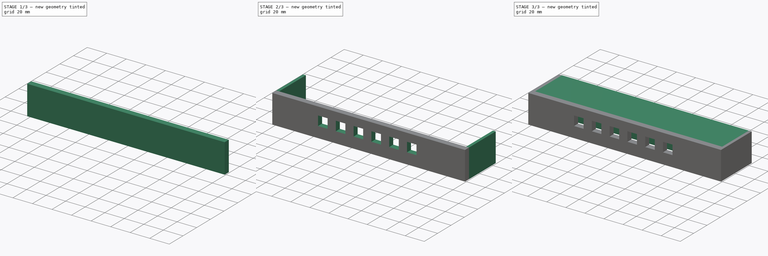
[diagram: build sequence overview — one tinted view per stage of 3, left to right]
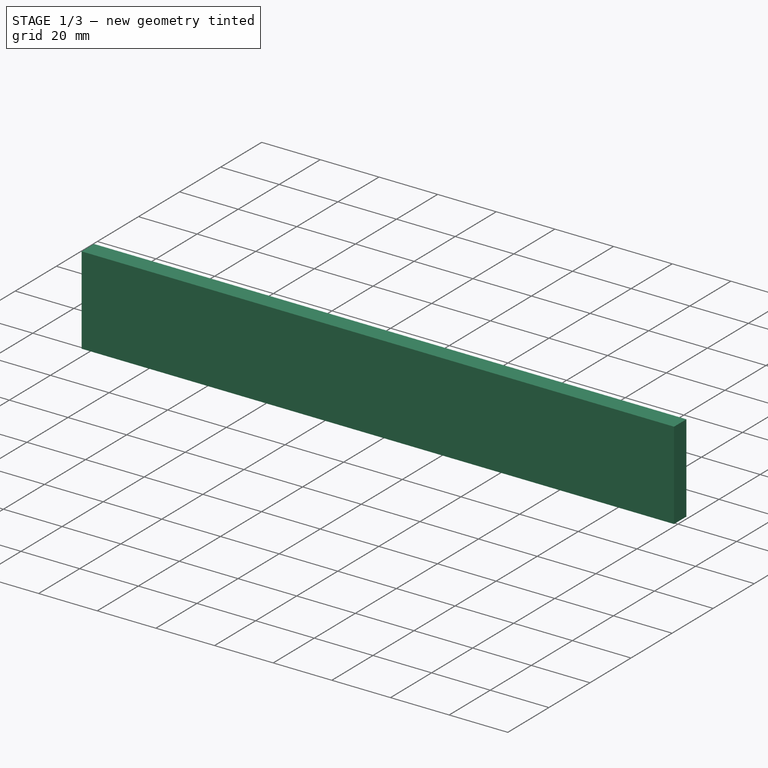
[diagram: stage 1 of 3 — iso view after this stage's code; geometry added in this stage tinted green]
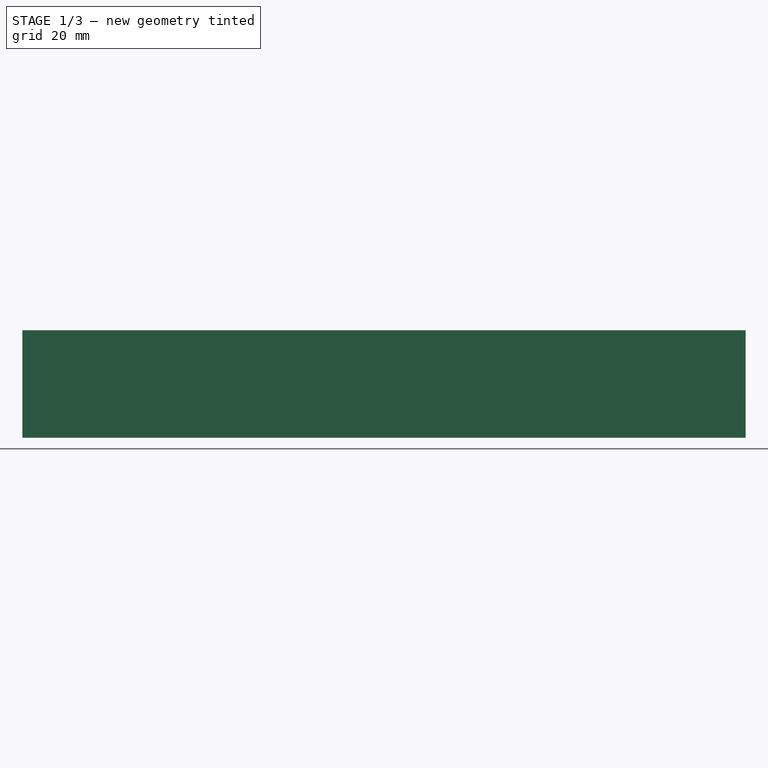
[diagram: stage 1 of 3 — front view after this stage's code; geometry added in this stage tinted green]
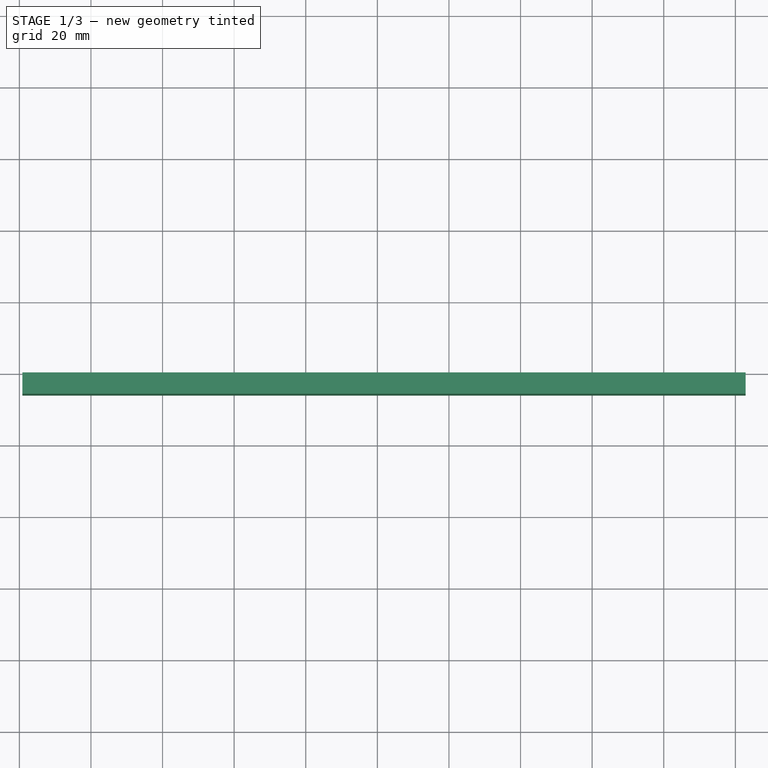
[diagram: stage 1 of 3 — top view after this stage's code; geometry added in this stage tinted green]
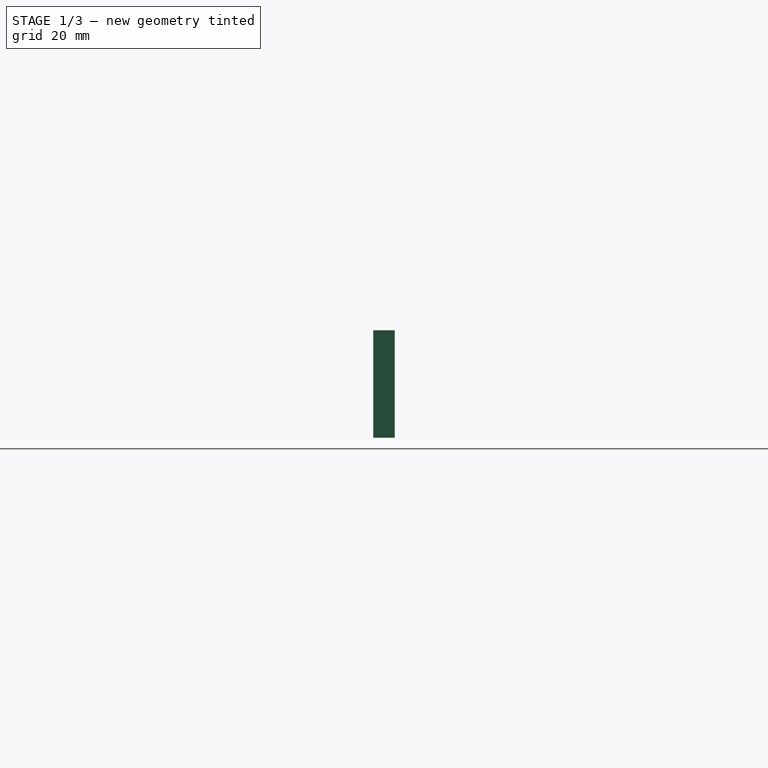
[diagram: stage 1 of 3 — right view after this stage's code; geometry added in this stage tinted green]
FCSTD DOCUMENT  (FreeCAD 0.21R33771 (Git))
Label: iteration2-testsupport
License: All rights reserved
LicenseURL: http://en.wikipedia.org/wiki/All_rights_reserved
objects: Sketcher::SketchObject×6, PartDesign::Pad×4, PartDesign::Pocket×2, App::MeasureDistance×1, PartDesign::LinearPattern×1, PartDesign::Body×1
note: 20 computed .brp shape members not serialized (recipe doc carries the construction recipe); baked Part::Feature solids carry a one-line shape summary decoded from their .brp

FEATURE [Sketcher::SketchObject] Sketch  label="bezel-front"
  FullyConstrained = true
  MapMode = 5
  Placement = pos=(0,0,0) rot=(1,0,0;1.5708rad)
  Support = -> [XZ_Plane]
  sketch-geometry (7):
    g0: LineSegment StartX=-69.1431 StartY=50.8022 StartZ=0 EndX=72.8569 EndY=50.8022 EndZ=0
    g1: LineSegment StartX=-99.1434 StartY=80.8022 StartZ=0 EndX=102.86 EndY=80.8022 EndZ=0
    g2: LineSegment StartX=1.95892 StartY=50.8022 StartZ=0 EndX=1.95892 EndY=80.8022 EndZ=0
    g3: LineSegment StartX=-69.1431 StartY=50.8022 StartZ=0 EndX=-99.1434 EndY=50.8022 EndZ=0
    g4: LineSegment StartX=72.8569 StartY=50.8022 StartZ=0 EndX=102.86 EndY=50.8022 EndZ=0
    g5: LineSegment StartX=102.86 StartY=80.8022 StartZ=0 EndX=102.86 EndY=50.8022 EndZ=0
    g6: LineSegment StartX=-99.1434 StartY=80.8022 StartZ=0 EndX=-99.1434 EndY=50.8022 EndZ=0
  constraints (22):
    c: Horizontal(g0)
    c: DistanceX(g0,g0) = 142
    c: Distance(g-1,g0) = 85.8
    c: Distance(g-1,g0) = 88.82
    c: Horizontal(g1)
    c: PointOnObject(g2,g0)
    c: PointOnObject(g2,g1)
    c: Vertical(g2)
    c: DistanceY(g2,g2) = 30
    c: Distance(g-1,g2) = 50.84
    c: Coincident(g3,g0)
    c: Horizontal(g3)
    c: Coincident(g4,g0)
    c: Horizontal(g4)
    c: Coincident(g5,g1)
    c: Coincident(g5,g4)
    c: Vertical(g5)
    c: Coincident(g6,g1)
    c: Coincident(g6,g3)
    c: Vertical(g6)
    c: DistanceX(g-2,g1) = 102.86
    c: Distance(g-1,g1) = 127.9
FEATURE [Sketcher::SketchObject] Sketch001  label="lcdinset"
  FullyConstrained = true
  MapMode = 5
  Placement = pos=(0,0,0) rot=(-1,0,0;1.5708rad)
  sketch-geometry (4):
    g0: LineSegment StartX=78 StartY=-59.5 StartZ=0 EndX=-78 EndY=-59.5 EndZ=0
    g1: LineSegment StartX=78 StartY=-59.5 StartZ=0 EndX=78 EndY=-50.69 EndZ=0
    g2: LineSegment StartX=-78 StartY=-59.5 StartZ=0 EndX=-78 EndY=-50.69 EndZ=0
    g3: LineSegment StartX=78 StartY=-50.69 StartZ=0 EndX=-78 EndY=-50.69 EndZ=0
  constraints (12):
    c: Horizontal(g0)
    c: DistanceX(g0,g0) = 156
    c: Coincident(g1,g0)
    c: Vertical(g1)
    c: Coincident(g2,g0)
    c: Vertical(g2)
    c: Coincident(g3,g1)
    c: Coincident(g3,g2)
    c: Horizontal(g3)
    c: DistanceX(g-2,g1) = 78
    c: DistanceY(g-1,g0) = -59.5
    c: DistanceY(g-1,g2) = -50.69
FEATURE [Sketcher::SketchObject] Sketch015
  FullyConstrained = true
  MapMode = 5
  Placement = pos=(0,-6,2.7e-15) rot=(1,0,0;1.5708rad)
  sketch-geometry (31):
    g0: LineSegment StartX=-68.77 StartY=54.8 StartZ=0 EndX=-51.15 EndY=54.8 EndZ=0
    g1: LineSegment StartX=-51.15 StartY=54.8 StartZ=0 EndX=-51.15 EndY=62.3 EndZ=0
    g2: LineSegment StartX=-51.15 StartY=62.3 StartZ=0 EndX=-41.15 EndY=62.3 EndZ=0
    g3: LineSegment StartX=-41.15 StartY=62.3 StartZ=0 EndX=-41.15 EndY=72.3 EndZ=0
    g4: LineSegment StartX=-41.15 StartY=72.3 StartZ=0 EndX=-51.15 EndY=72.3 EndZ=0
    g5: LineSegment StartX=-51.15 StartY=72.3 StartZ=0 EndX=-51.15 EndY=62.3 EndZ=0
    g6: LineSegment StartX=-41.15 StartY=62.3 StartZ=0 EndX=-32.51 EndY=62.3 EndZ=0
    g7: LineSegment StartX=-32.51 StartY=62.3 StartZ=0 EndX=-22.51 EndY=62.3 EndZ=0
    g8: LineSegment StartX=-22.51 StartY=62.3 StartZ=0 EndX=-22.51 EndY=72.3 EndZ=0
    g9: LineSegment StartX=-22.51 StartY=72.3 StartZ=0 EndX=-32.51 EndY=72.3 EndZ=0
    g10: LineSegment StartX=-32.51 StartY=72.3 StartZ=0 EndX=-32.51 EndY=62.3 EndZ=0
    g11: LineSegment StartX=-22.51 StartY=62.3 StartZ=0 EndX=-13.87 EndY=62.3 EndZ=0
    g12: LineSegment StartX=-13.87 StartY=62.3 StartZ=0 EndX=-3.87 EndY=62.3 EndZ=0
    g13: LineSegment StartX=-3.87 StartY=62.3 StartZ=0 EndX=-3.87 EndY=72.3 EndZ=0
    g14: LineSegment StartX=-3.87 StartY=72.3 StartZ=0 EndX=-13.87 EndY=72.3 EndZ=0
    g15: LineSegment StartX=-13.87 StartY=72.3 StartZ=0 EndX=-13.87 EndY=62.3 EndZ=0
    g16: LineSegment StartX=-3.87 StartY=62.3 StartZ=0 EndX=4.77 EndY=62.3 EndZ=0
    g17: LineSegment StartX=4.77 StartY=62.3 StartZ=0 EndX=14.77 EndY=62.3 EndZ=0
    g18: LineSegment StartX=14.77 StartY=62.3 StartZ=0 EndX=14.77 EndY=72.3 EndZ=0
    g19: LineSegment StartX=14.77 StartY=72.3 StartZ=0 EndX=4.77 EndY=72.3 EndZ=0
    g20: LineSegment StartX=4.77 StartY=72.3 StartZ=0 EndX=4.77 EndY=62.3 EndZ=0
    g21: LineSegment StartX=14.77 StartY=62.3 StartZ=0 EndX=23.41 EndY=62.3 EndZ=0
    g22: LineSegment StartX=23.41 StartY=62.3 StartZ=0 EndX=33.41 EndY=62.3 EndZ=0
    g23: LineSegment StartX=33.41 StartY=62.3 StartZ=0 EndX=33.41 EndY=72.3 EndZ=0
    g24: LineSegment StartX=33.41 StartY=72.3 StartZ=0 EndX=23.41 EndY=72.3 EndZ=0
    g25: LineSegment StartX=23.41 StartY=72.3 StartZ=0 EndX=23.41 EndY=62.3 EndZ=0
    g26: LineSegment StartX=33.41 StartY=62.3 StartZ=0 EndX=42.05 EndY=62.3 EndZ=0
    g27: LineSegment StartX=42.05 StartY=62.3 StartZ=0 EndX=52.05 EndY=62.3 EndZ=0
    g28: LineSegment StartX=52.05 StartY=62.3 StartZ=0 EndX=52.05 EndY=72.3 EndZ=0
    g29: LineSegment StartX=52.05 StartY=72.3 StartZ=0 EndX=42.05 EndY=72.3 EndZ=0
    g30: LineSegment StartX=42.05 StartY=72.3 StartZ=0 EndX=42.05 EndY=62.3 EndZ=0
  constraints (88):
    c: Horizontal(g0)
    c: DistanceX(g0,g0) = 17.62
    c: DistanceX(g-2,g0) = -51.15
    c: DistanceY(g-1,g0) = 54.8
    c: Coincident(g1,g0)
    c: Vertical(g1)
    c: DistanceY(g1,g1) = 7.5
    c: Coincident(g2,g3)
    c: Coincident(g3,g4)
    c: Coincident(g4,g5)
    c: Coincident(g5,g2)
    c: Horizontal(g2)
    c: Horizontal(g4)
    c: Vertical(g3)
    c: Vertical(g5)
    c: Coincident(g2,g1)
    c: DistanceX(g2,g2) = 10
    c: DistanceY(g3,g3) = 10
    c: Coincident(g6,g2)
    c: Horizontal(g6)
    c: DistanceX(g6,g6) = 8.64
    c: Coincident(g7,g8)
    c: Coincident(g8,g9)
    c: Coincident(g9,g10)
    c: Coincident(g10,g7)
    c: Horizontal(g7)
    c: Horizontal(g9)
    c: Vertical(g8)
    c: Vertical(g10)
    c: Coincident(g7,g6)
    c: DistanceX(g7,g7) = 10
    c: DistanceY(g8,g8) = 10
    c: Coincident(g11,g7)
    c: Horizontal(g11)
    c: DistanceX(g11,g11) = 8.64
    c: Coincident(g12,g13)
    c: Coincident(g13,g14)
    c: Coincident(g14,g15)
    c: Coincident(g15,g12)
    c: Horizontal(g12)
    c: Horizontal(g14)
    c: Vertical(g13)
    c: Vertical(g15)
    c: Coincident(g12,g11)
    c: DistanceX(g12,g12) = 10
    c: DistanceY(g13,g13) = 10
    c: Coincident(g16,g12)
    c: Horizontal(g16)
    c: DistanceX(g16,g16) = 8.64
    c: Coincident(g17,g18)
    c: Coincident(g18,g19)
    c: Coincident(g19,g20)
    c: Coincident(g20,g17)
    c: Horizontal(g17)
    c: Horizontal(g19)
    c: Vertical(g18)
    c: Vertical(g20)
    c: Coincident(g17,g16)
    c: DistanceX(g17,g17) = 10
    c: DistanceY(g18,g18) = 10
    c: Coincident(g21,g17)
    c: Horizontal(g21)
    c: DistanceX(g21,g21) = 8.64
    c: Coincident(g22,g23)
    c: Coincident(g23,g24)
    c: Coincident(g24,g25)
    c: Coincident(g25,g22)
    c: Horizontal(g22)
    c: Horizontal(g24)
    c: Vertical(g23)
    c: Vertical(g25)
    c: Coincident(g22,g21)
    c: DistanceX(g22,g22) = 10
    c: Coincident(g26,g22)
    c: Horizontal(g26)
    c: DistanceX(g26,g26) = 8.64
    c: Coincident(g27,g28)
    c: Coincident(g28,g29)
    c: Coincident(g29,g30)
    c: Coincident(g30,g27)
    c: Horizontal(g27)
    c: Horizontal(g29)
    c: Vertical(g28)
    c: Vertical(g30)
    c: Coincident(g27,g26)
    c: DistanceX(g27,g27) = 10
    c: DistanceY(g28,g28) = 10
    c: DistanceY(g23,g23) = 10
FEATURE [App::MeasureDistance] Distance  label="Distance: 4.23 mm"
  Distance = 4.23431
  P1 = (-22.5598,-5.99999,-53.1978)
  P2 = (-22.4715,-3.00654,-50.2043)
FEATURE [PartDesign::Pad] Pad
  Direction = (0,-1,-2e-16)
  Length = 6
  Length2 = 10
  Placement = pos=(0,0,0) rot=(1,0,0;1.5708rad)
  Profile = -> Sketch
  ReferenceAxis = -> Sketch [N_Axis]
  Type = 0
FEATURE [PartDesign::Pocket] Pocket
  BaseFeature = -> Pad
  Direction = (0,-1,4e-16)
  Length = 4
  Length2 = 5
  Placement = pos=(0,0,0) rot=(1,0,0;1.5708rad)
  Profile = -> Sketch001
  ReferenceAxis = -> Sketch001 [N_Axis]
  Type = 0
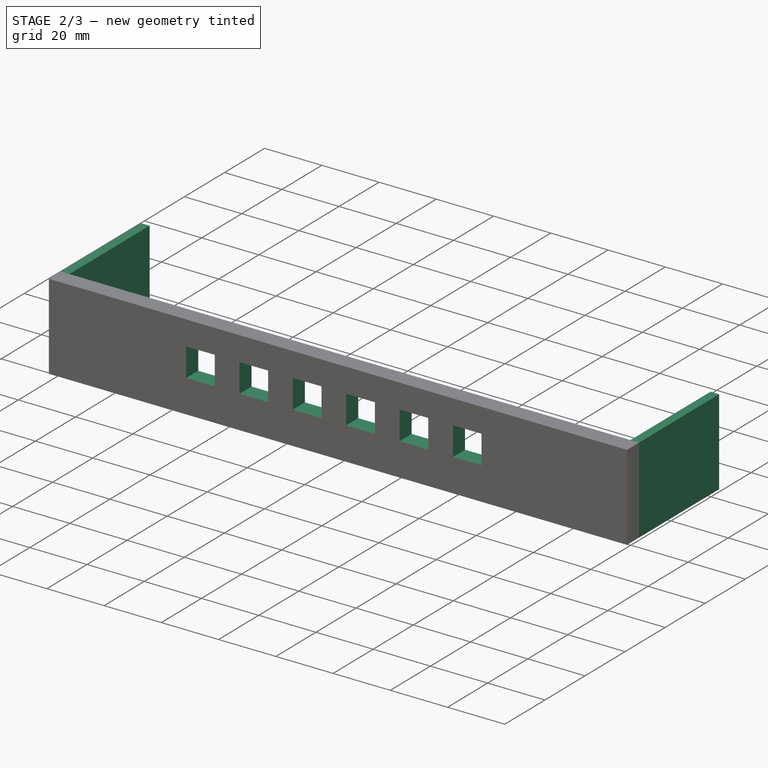
[diagram: stage 2 of 3 — iso view after this stage's code; geometry added in this stage tinted green]
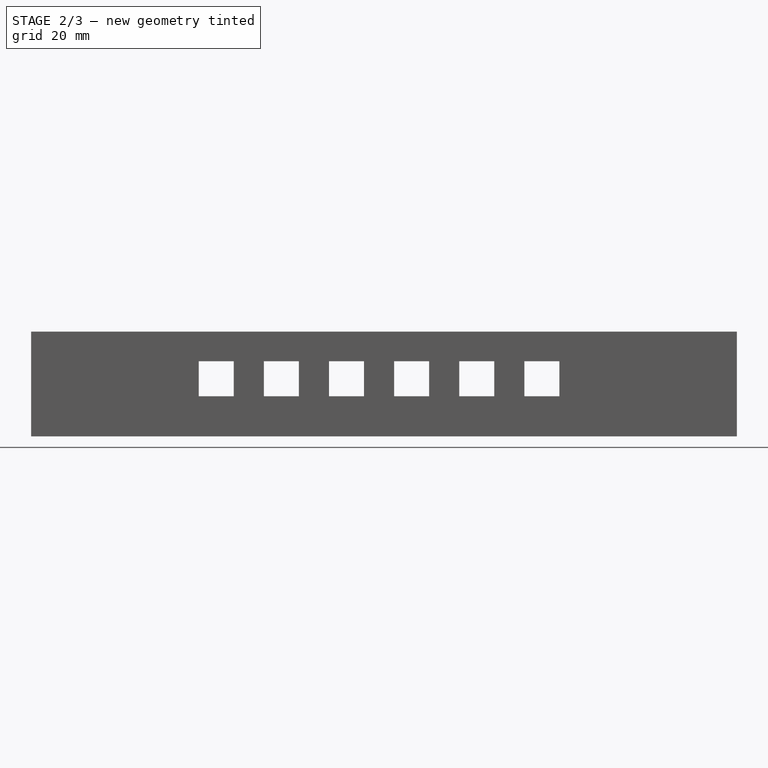
[diagram: stage 2 of 3 — front view after this stage's code; geometry added in this stage tinted green]
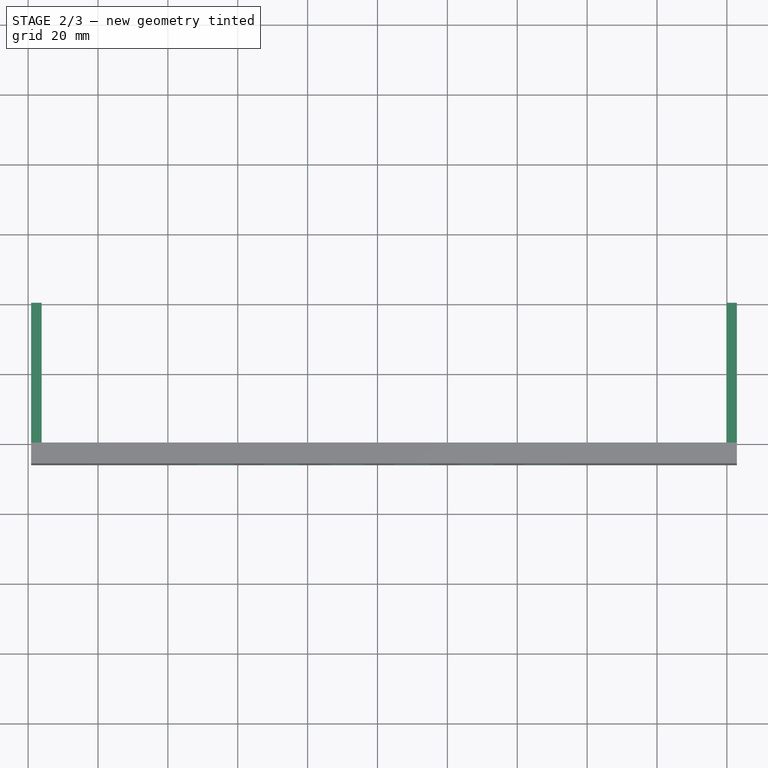
[diagram: stage 2 of 3 — top view after this stage's code; geometry added in this stage tinted green]
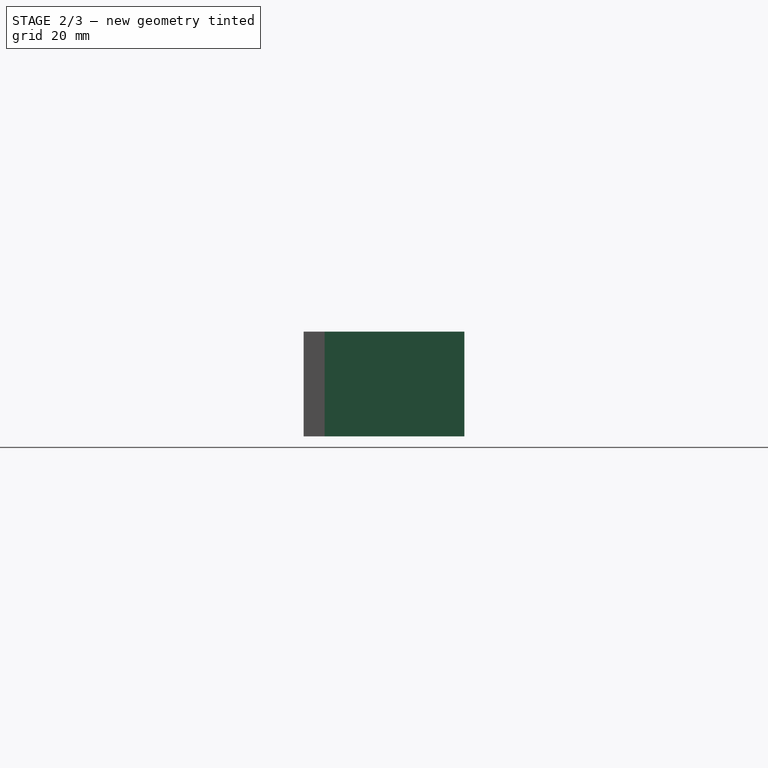
[diagram: stage 2 of 3 — right view after this stage's code; geometry added in this stage tinted green]
FEATURE [PartDesign::Pocket] Pocket001
  BaseFeature = -> Pocket
  Direction = (0,1,-4e-16)
  Length = 5
  Length2 = 5
  Placement = pos=(0,0,0) rot=(1,0,0;1.5708rad)
  Profile = -> Sketch015
  ReferenceAxis = -> Sketch015 [N_Axis]
  Type = 1
FEATURE [Sketcher::SketchObject] Sketch016
  FullyConstrained = false
  MapMode = 5
  Placement = pos=(0,0,0) rot=(-1,0,0;1.5708rad)
  Support = -> [Pocket001]
  sketch-geometry (4):
    g0: LineSegment StartX=102.86 StartY=-50.8041 StartZ=0 EndX=99.86 EndY=-50.8041 EndZ=0
    g1: LineSegment StartX=99.86 StartY=-50.8041 StartZ=0 EndX=99.86 EndY=-80.8041 EndZ=0
    g2: LineSegment StartX=99.86 StartY=-80.8041 StartZ=0 EndX=102.86 EndY=-80.8041 EndZ=0
    g3: LineSegment StartX=102.86 StartY=-80.8041 StartZ=0 EndX=102.86 EndY=-50.8041 EndZ=0
  constraints (10):
    c: Coincident(g0,g1)
    c: Coincident(g1,g2)
    c: Coincident(g2,g3)
    c: Coincident(g3,g0)
    c: Horizontal(g0)
    c: Horizontal(g2)
    c: Vertical(g1)
    c: Vertical(g3)
    c: DistanceY(g1,g1) = 30
    c: DistanceX(g2,g2) = 3
FEATURE [PartDesign::Pad] Pad001
  BaseFeature = -> Pocket001
  Direction = (0,1,2e-16)
  Length = 40
  Length2 = 10
  Placement = pos=(0,0,0) rot=(1,0,0;1.5708rad)
  Profile = -> Sketch016
  ReferenceAxis = -> Sketch016 [N_Axis]
  Type = 0
FEATURE [PartDesign::LinearPattern] LinearPattern
  BaseFeature = -> Pad001
  Direction = -> Sketch016 [H_Axis]
  Length = 199
  Occurrences = 2
  Originals = -> [Pad001]
  Placement = pos=(0,0,0) rot=(1,0,0;1.5708rad)
  Reversed = true
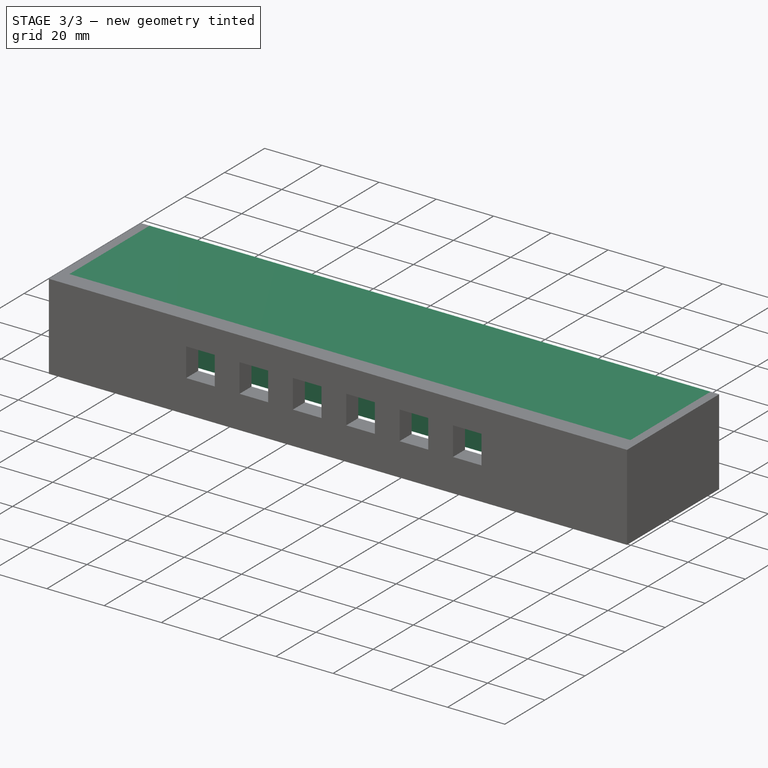
[diagram: stage 3 of 3 — iso view after this stage's code; geometry added in this stage tinted green]
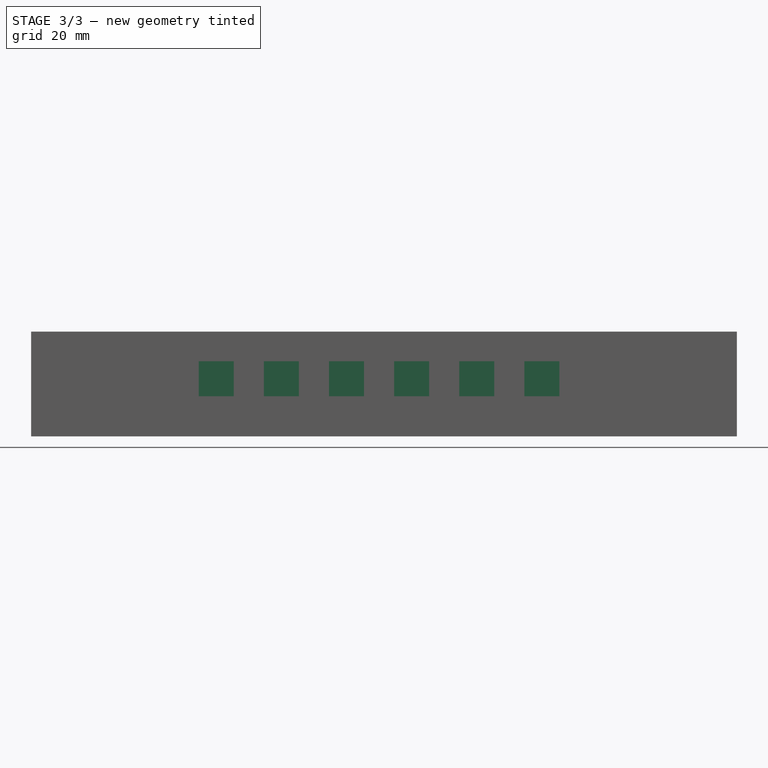
[diagram: stage 3 of 3 — front view after this stage's code; geometry added in this stage tinted green]
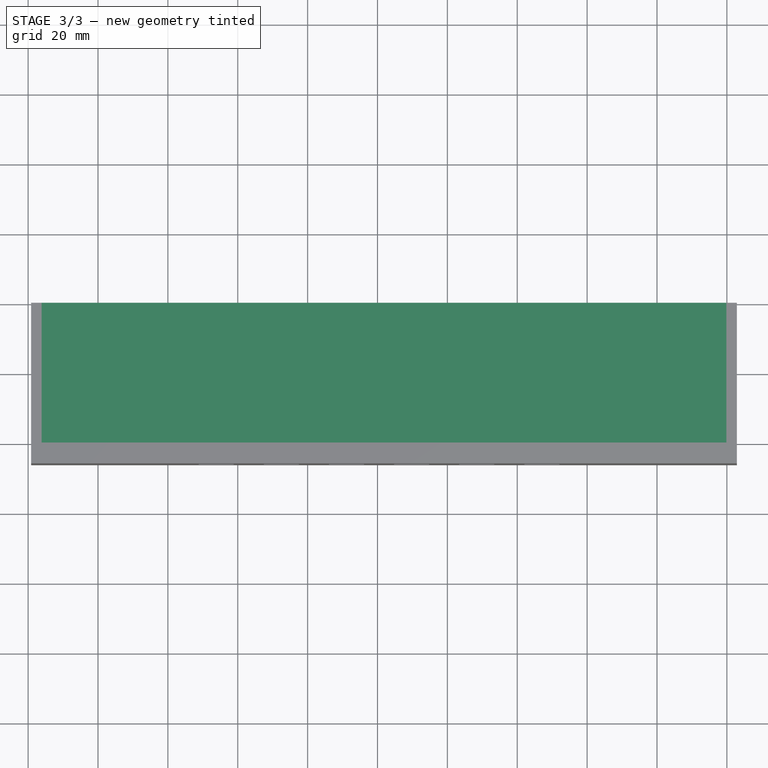
[diagram: stage 3 of 3 — top view after this stage's code; geometry added in this stage tinted green]
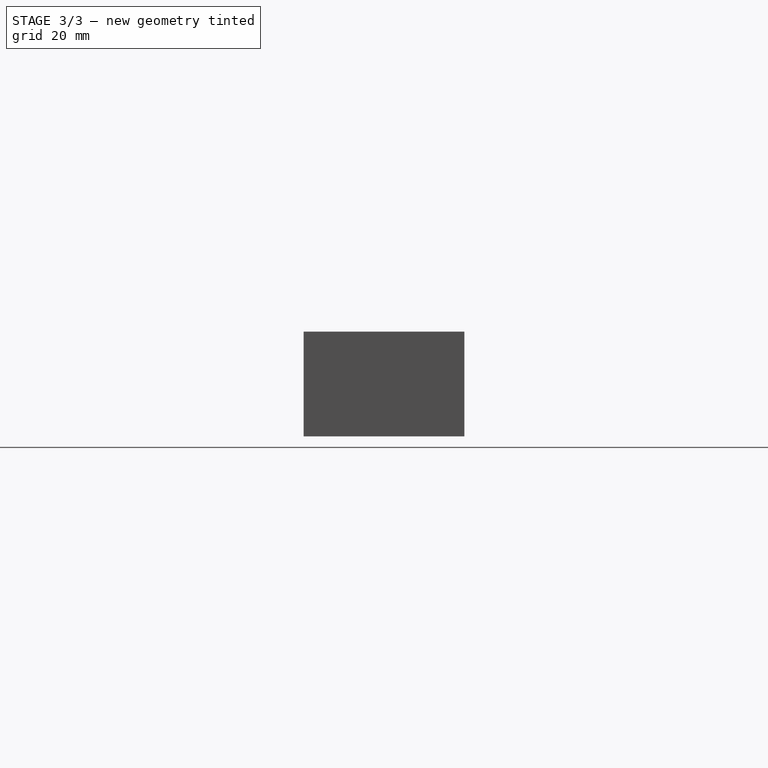
[diagram: stage 3 of 3 — right view after this stage's code; geometry added in this stage tinted green]
FEATURE [Sketcher::SketchObject] Sketch017
  FullyConstrained = true
  MapMode = 5
  Placement = pos=(0,0,0) rot=(-1,0,0;1.5708rad)
  Support = -> [LinearPattern]
  sketch-geometry (4):
    g0: LineSegment StartX=-96.1518 StartY=-80.8 StartZ=0 EndX=99.8482 EndY=-80.8 EndZ=0
    g1: LineSegment StartX=99.8482 StartY=-80.8 StartZ=0 EndX=99.8482 EndY=-77.8 EndZ=0
    g2: LineSegment StartX=99.8482 StartY=-77.8 StartZ=0 EndX=-96.1518 EndY=-77.8 EndZ=0
    g3: LineSegment StartX=-96.1518 StartY=-77.8 StartZ=0 EndX=-96.1518 EndY=-80.8 EndZ=0
  constraints (12):
    c: Coincident(g0,g1)
    c: Coincident(g1,g2)
    c: Coincident(g2,g3)
    c: Coincident(g3,g0)
    c: Horizontal(g0)
    c: Horizontal(g2)
    c: Vertical(g1)
    c: Vertical(g3)
    c: DistanceY(g1,g1) = 3
    c: DistanceX(g0,g0) = 196
    c: DistanceY(g-1,g0) = -80.8
    c: Distance(g-1,g1) = 126.58
FEATURE [PartDesign::Pad] Pad002
  BaseFeature = -> LinearPattern
  Direction = (0,1,2e-16)
  Length = 40
  Length2 = 10
  Placement = pos=(0,0,0) rot=(1,0,0;1.5708rad)
  Profile = -> Sketch017
  ReferenceAxis = -> Sketch017 [N_Axis]
  Type = 0
FEATURE [Sketcher::SketchObject] Sketch018
  FullyConstrained = false
  MapMode = 5
  Placement = pos=(0,-1.73e-14,77.8) rot=(1,0,0;3.14159rad)
  Support = -> [Pad002]
  sketch-geometry (5):
    g0: LineSegment StartX=-81.5666 StartY=0 StartZ=0 EndX=-81.5666 EndY=-9.45 EndZ=0
    g1: LineSegment StartX=-96.11 StartY=-9.45 StartZ=0 EndX=99.83 EndY=-9.45 EndZ=0
    g2: LineSegment StartX=99.83 StartY=-9.45 StartZ=0 EndX=99.83 EndY=-11.45 EndZ=0
    g3: LineSegment StartX=99.83 StartY=-11.45 StartZ=0 EndX=-96.11 EndY=-11.45 EndZ=0
    g4: LineSegment StartX=-96.11 StartY=-11.45 StartZ=0 EndX=-96.11 EndY=-9.45 EndZ=0
  constraints (15):
    c: PointOnObject(g0,g-1)
    c: Vertical(g0)
    c: DistanceY(g0,g0) = 9.45
    c: Coincident(g1,g2)
    c: Coincident(g2,g3)
    c: Coincident(g3,g4)
    c: Coincident(g4,g1)
    c: Horizontal(g1)
    c: Horizontal(g3)
    c: Vertical(g2)
    c: Vertical(g4)
    c: DistanceY(g2,g2) = 2
    c: DistanceX(g3,g3) = 195.94
    c: PointOnObject(g0,g1)
    c: DistanceX(g-2,g2) = 99.83
FEATURE [PartDesign::Pad] Pad003
  BaseFeature = -> Pad002
  Direction = (0,2e-16,-1)
  Length = 20
  Length2 = 10
  Placement = pos=(0,0,0) rot=(1,0,0;1.5708rad)
  Profile = -> Sketch018
  ReferenceAxis = -> Sketch018 [N_Axis]
  Type = 0
FEATURE [PartDesign::Body] Body  label="Bezel"
  Group = -> [Sketch,Sketch001,Sketch015,Pad,Pocket,Pocket001,Sketch016,Pad001,LinearPattern,Sketch017,Pad002,Sketch018,Pad003]
  Origin = -> Origin
  Tip = -> Pad003
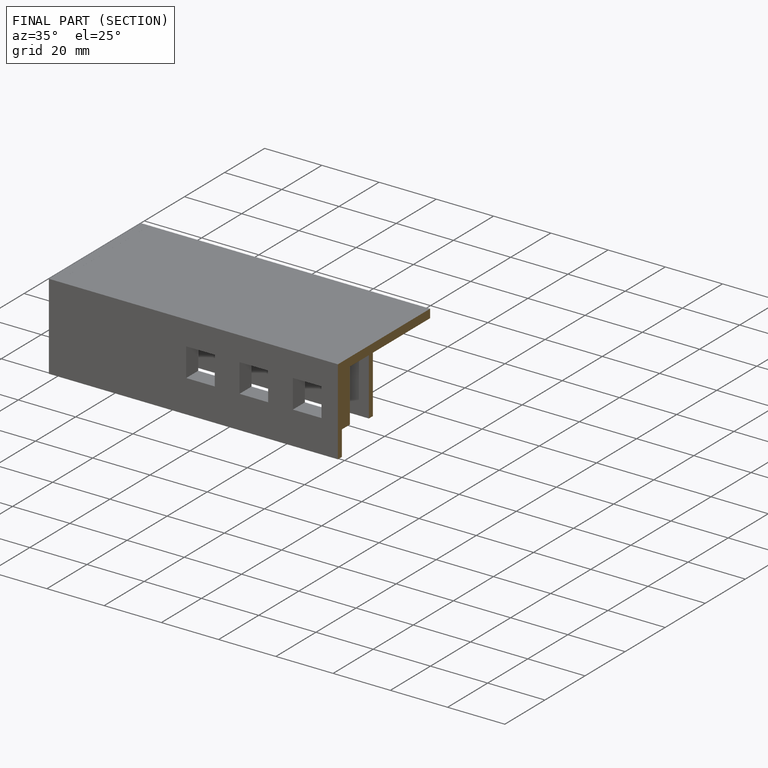
[diagram: finished part — half-section view (interior)]
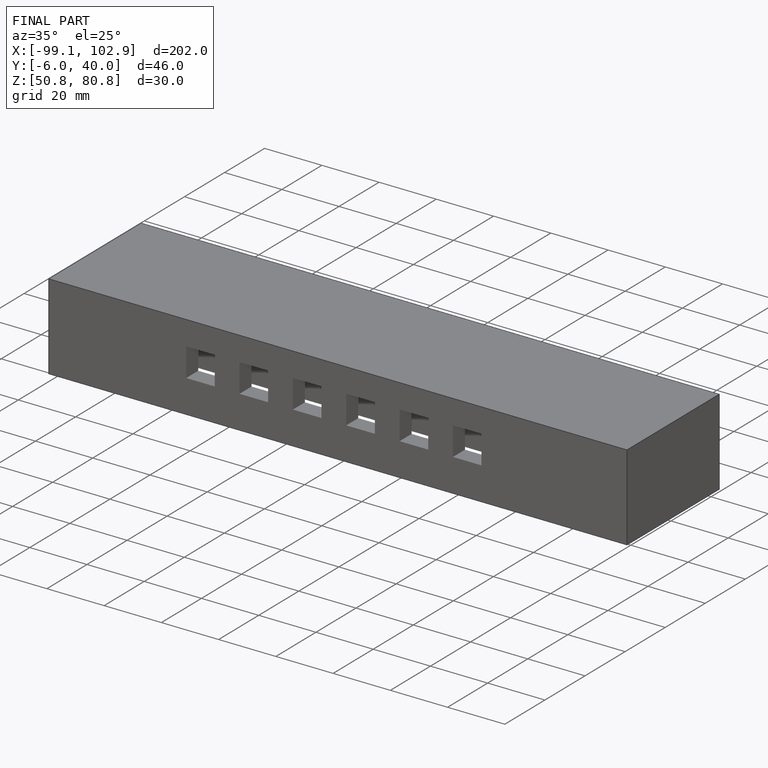
[diagram: finished part — iso view with bounding-box wireframe]
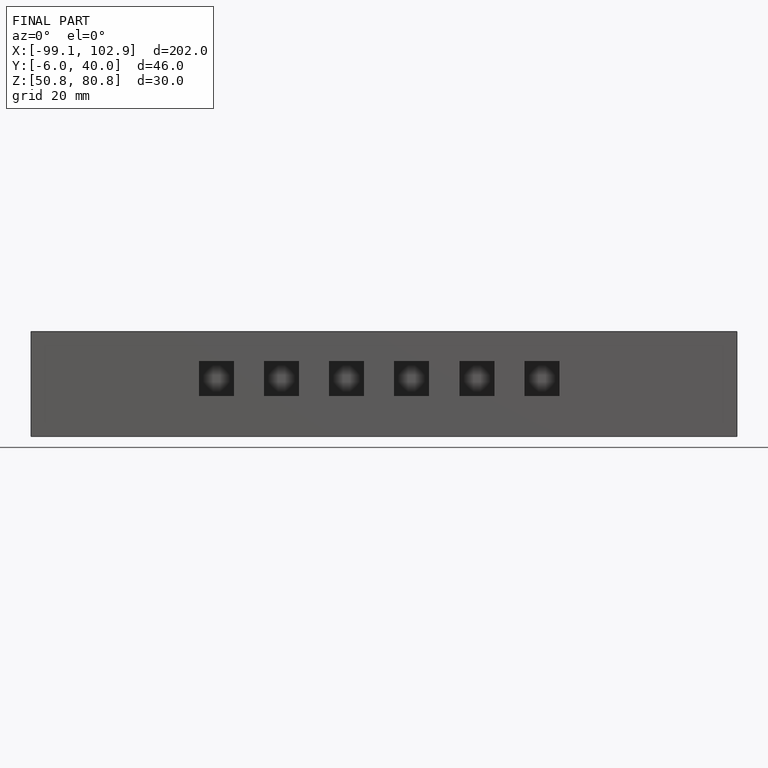
[diagram: finished part — front view with bounding-box wireframe]
